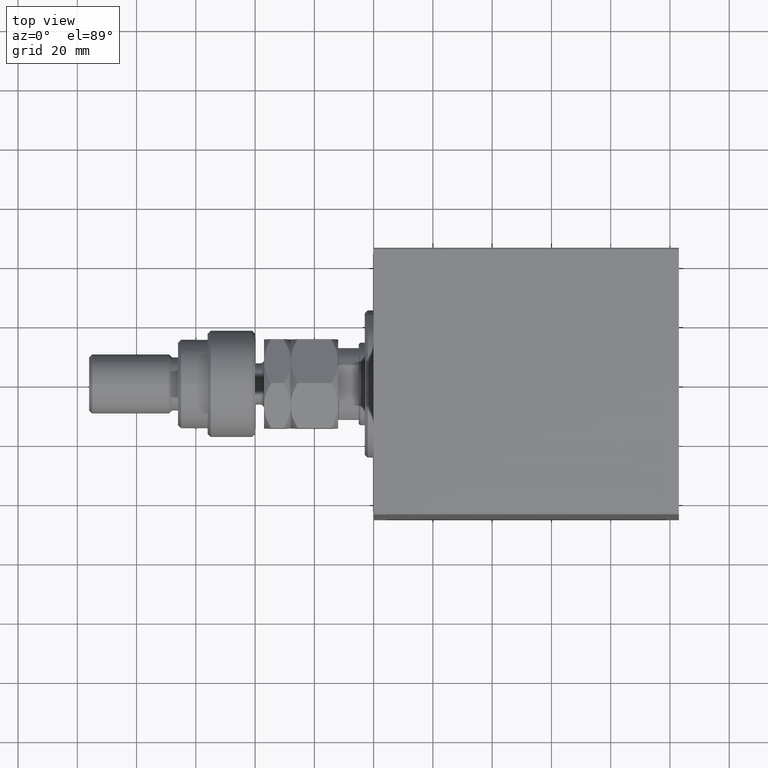
[diagram: clean part render]
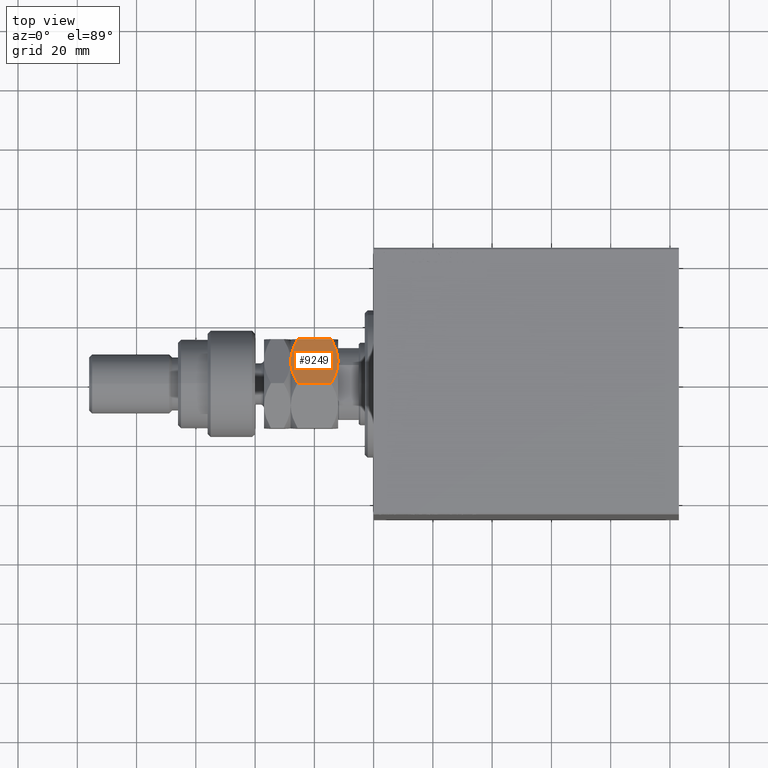
[diagram: same view with one face highlighted and labeled with its STEP entity id]
A machine part, top view. The second image highlights one B-rep face of the part: STEP entity #9249.
In plain terms, the highlighted planar face has unit normal (-0, -0.5, -0.866).
Its self-contained STEP definition (entity closure, byte-faithful):
#334 = EDGE_CURVE ( 'NONE', #31802, #14482, #17948, .T. ) ;
#1685 = DIRECTION ( 'NONE',  ( 0.8660254037844387076, -0.4999999999999997224, 0.000000000000000000 ) ) ;
#2622 = VERTEX_POINT ( 'NONE', #38511 ) ;
#2830 = CARTESIAN_POINT ( 'NONE',  ( 15.00000000000000000, 8.660254037844389075, 13.67949192431123784 ) ) ;
#3761 = CARTESIAN_POINT ( 'NONE',  ( 8.156876182308252510, 12.61113341608665728, 16.00000000000000355 ) ) ;
#3915 = EDGE_CURVE ( 'NONE', #19552, #42901, #39090, .T. ) ;
#4783 = CARTESIAN_POINT ( 'NONE',  ( 2.378834511187503331, 15.94708733029709080, 1.064486067744004671 ) ) ;
#4935 = CARTESIAN_POINT ( 'NONE',  ( 7.500000000000000000, 12.99038105676657651, 16.00000000000000000 ) ) ;
#6579 = CARTESIAN_POINT ( 'NONE',  ( 15.00000000000000000, 8.660254037844389075, 2.320508075688765715 ) ) ;
#8324 = CARTESIAN_POINT ( 'NONE',  ( 1.176108425306640504, 16.64148155974179843, 1.641481559741787111 ) ) ;
#9249 = ADVANCED_FACE ( 'NONE', ( #45304 ), #23588, .F. ) ;
#9411 = CARTESIAN_POINT ( 'NONE',  ( 2.383929548160350631, 15.94414570932928576, 14.93952096862913059 ) ) ;
#10123 = VECTOR ( 'NONE', #27977, 1000.000000000000000 ) ;
#10624 = CARTESIAN_POINT ( 'NONE',  ( 8.823580389329306328, 12.22621156269319798, 15.94046462602529957 ) ) ;
#10968 = LINE ( 'NONE', #25335, #41308 ) ;
#11349 = CARTESIAN_POINT ( 'NONE',  ( 7.499999999999997335, 12.99038105676658184, 0.000000000000000000 ) ) ;
#11426 = VERTEX_POINT ( 'NONE', #18944 ) ;
#12096 = CARTESIAN_POINT ( 'NONE',  ( 4.881674457977373649, 14.50207201327941320, 0.2838026619462936107 ) ) ;
#12945 = CARTESIAN_POINT ( 'NONE',  ( 4.913081180497409939, 14.48393933357810504, 15.76967007806078946 ) ) ;
#12989 = CARTESIAN_POINT ( 'NONE',  ( 15.00000000000000000, 8.660254037844389075, 16.00000000000000000 ) ) ;
#13612 = CARTESIAN_POINT ( 'NONE',  ( 0.000000000000000000, 17.32050807568877104, 16.00000000000000000 ) ) ;
#14482 = VERTEX_POINT ( 'NONE', #11349 ) ;
#15617 = CARTESIAN_POINT ( 'NONE',  ( 4.247772349543482484, 14.86805556622358893, 0.4475714085130255149 ) ) ;
#15780 = ORIENTED_EDGE ( 'NONE', *, *, #37366, .F. ) ;
#16140 = CARTESIAN_POINT ( 'NONE',  ( 3.803331551779305683E-16, 17.32050807568877104, 13.67949192431124317 ) ) ;
#17163 = CARTESIAN_POINT ( 'NONE',  ( 10.08691881950258740, 11.49682277995505331, 0.2303299219392160591 ) ) ;
#17544 = EDGE_CURVE ( 'NONE', #11426, #2622, #10968, .T. ) ;
#17668 = CARTESIAN_POINT ( 'NONE',  ( 10.75222765045651663, 11.11270654730956586, 15.55242859148697576 ) ) ;
#17948 = B_SPLINE_CURVE_WITH_KNOTS ( 'NONE', 3,
 ( #22005, #8324, #4783, #15617, #12096, #26462, #40885, #21780 ),
 .UNSPECIFIED., .F., .F.,
 ( 4, 2, 2, 4 ),
 ( 2.544309033652185071E-07, 0.004488823491893902638, 0.006733108022389172782, 0.008977392552884443794 ),
 .UNSPECIFIED. ) ;
#18129 = CARTESIAN_POINT ( 'NONE',  ( 10.11832554202262457, 11.47869010025374514, 15.71619733805371411 ) ) ;
#18932 = DIRECTION ( 'NONE',  ( -0.000000000000000000, -0.000000000000000000, -1.000000000000000000 ) ) ;
#18944 = CARTESIAN_POINT ( 'NONE',  ( 15.00000000000000000, 8.660254037844389075, 13.67949192431123784 ) ) ;
#19307 = CARTESIAN_POINT ( 'NONE',  ( 6.195449321423087241, 13.74356374221446764, 16.00000000000000355 ) ) ;
#19552 = VERTEX_POINT ( 'NONE', #27390 ) ;
#19780 = EDGE_CURVE ( 'NONE', #11426, #19552, #28849, .T. ) ;
#20464 = EDGE_LOOP ( 'NONE', ( #46510, #33955, #28321, #31549, #43783, #15780 ) ) ;
#20736 = CARTESIAN_POINT ( 'NONE',  ( 12.62116548881249756, 10.03367478323606221, 14.93551393225599710 ) ) ;
#21780 = CARTESIAN_POINT ( 'NONE',  ( 7.499999999999997335, 12.99038105676658184, 0.000000000000000000 ) ) ;
#22005 = CARTESIAN_POINT ( 'NONE',  ( 7.621669386706803087E-17, 17.32050807568877104, 2.320508075688761718 ) ) ;
#23588 = PLANE ( 'NONE',  #35920 ) ;
#25335 = CARTESIAN_POINT ( 'NONE',  ( 15.00000000000000000, 8.660254037844389075, 16.00000000000000000 ) ) ;
#26462 = CARTESIAN_POINT ( 'NONE',  ( 6.176419610670692784, 13.75455055083996214, 0.05953537397470201609 ) ) ;
#27082 = CARTESIAN_POINT ( 'NONE',  ( 3.803331551779305683E-16, 17.32050807568877104, 13.67949192431124317 ) ) ;
#27140 = CARTESIAN_POINT ( 'NONE',  ( 7.621669386706803087E-17, 17.32050807568877104, 2.320508075688761718 ) ) ;
#27390 = CARTESIAN_POINT ( 'NONE',  ( 7.500000000000000000, 12.99038105676657651, 16.00000000000000000 ) ) ;
#27977 = DIRECTION ( 'NONE',  ( -0.000000000000000000, -0.000000000000000000, -1.000000000000000000 ) ) ;
#28002 = CARTESIAN_POINT ( 'NONE',  ( 12.61607045183964715, 10.03661640420386902, 1.060479031370879843 ) ) ;
#28321 = ORIENTED_EDGE ( 'NONE', *, *, #3915, .F. ) ;
#28750 = CARTESIAN_POINT ( 'NONE',  ( 13.82389157469336283, 9.339280553791368789, 14.35851844025821400 ) ) ;
#28849 = B_SPLINE_CURVE_WITH_KNOTS ( 'NONE', 3,
 ( #2830, #28750, #20736, #17668, #18129, #10624, #3761, #35366 ),
 .UNSPECIFIED., .F., .F.,
 ( 4, 2, 2, 4 ),
 ( 2.544309033641602453E-07, 0.004488823491893906975, 0.006733108022389177119, 0.008977392552884448998 ),
 .UNSPECIFIED. ) ;
#30154 = CARTESIAN_POINT ( 'NONE',  ( 1.174746544192161846, 16.64226784216984356, 14.35773215783022572 ) ) ;
#31045 = LINE ( 'NONE', #13612, #10123 ) ;
#31549 = ORIENTED_EDGE ( 'NONE', *, *, #19780, .F. ) ;
#31802 = VERTEX_POINT ( 'NONE', #27140 ) ;
#33802 = B_SPLINE_CURVE_WITH_KNOTS ( 'NONE', 3,
 ( #35559, #36027, #17163, #28002, #38878, #6579 ),
 .UNSPECIFIED., .F., .F.,
 ( 4, 2, 4 ),
 ( 0.008977392552884443794, 0.01343452311421656532, 0.01789165367554868685 ),
 .UNSPECIFIED. ) ;
#33955 = ORIENTED_EDGE ( 'NONE', *, *, #42483, .F. ) ;
#33968 = DIRECTION ( 'NONE',  ( -0.4999999999999997780, -0.8660254037844388186, 0.000000000000000000 ) ) ;
#35366 = CARTESIAN_POINT ( 'NONE',  ( 7.500000000000000000, 12.99038105676657651, 16.00000000000000000 ) ) ;
#35559 = CARTESIAN_POINT ( 'NONE',  ( 7.499999999999997335, 12.99038105676658184, 0.000000000000000000 ) ) ;
#35920 = AXIS2_PLACEMENT_3D ( 'NONE', #12989, #33968, #1685 ) ;
#36027 = CARTESIAN_POINT ( 'NONE',  ( 8.804550678576910983, 12.23719837131869426, -5.031375706690542042E-16 ) ) ;
#37366 = EDGE_CURVE ( 'NONE', #14482, #2622, #33802, .T. ) ;
#38511 = CARTESIAN_POINT ( 'NONE',  ( 15.00000000000000000, 8.660254037844389075, 2.320508075688765715 ) ) ;
#38878 = CARTESIAN_POINT ( 'NONE',  ( 13.82525345580783949, 9.338494271363313004, 1.642267842169781833 ) ) ;
#39090 = B_SPLINE_CURVE_WITH_KNOTS ( 'NONE', 3,
 ( #4935, #19307, #12945, #9411, #30154, #27082 ),
 .UNSPECIFIED., .F., .F.,
 ( 4, 2, 4 ),
 ( 0.008977392552884448998, 0.01343452311421656706, 0.01789165367554868338 ),
 .UNSPECIFIED. ) ;
#40885 = CARTESIAN_POINT ( 'NONE',  ( 6.843123817691747490, 13.36962869744650639, -3.557538378468061917E-16 ) ) ;
#41308 = VECTOR ( 'NONE', #18932, 1000.000000000000000 ) ;
#42483 = EDGE_CURVE ( 'NONE', #42901, #31802, #31045, .T. ) ;
#42901 = VERTEX_POINT ( 'NONE', #16140 ) ;
#43783 = ORIENTED_EDGE ( 'NONE', *, *, #17544, .T. ) ;
#45304 = FACE_OUTER_BOUND ( 'NONE', #20464, .T. ) ;
#46510 = ORIENTED_EDGE ( 'NONE', *, *, #334, .F. ) ;